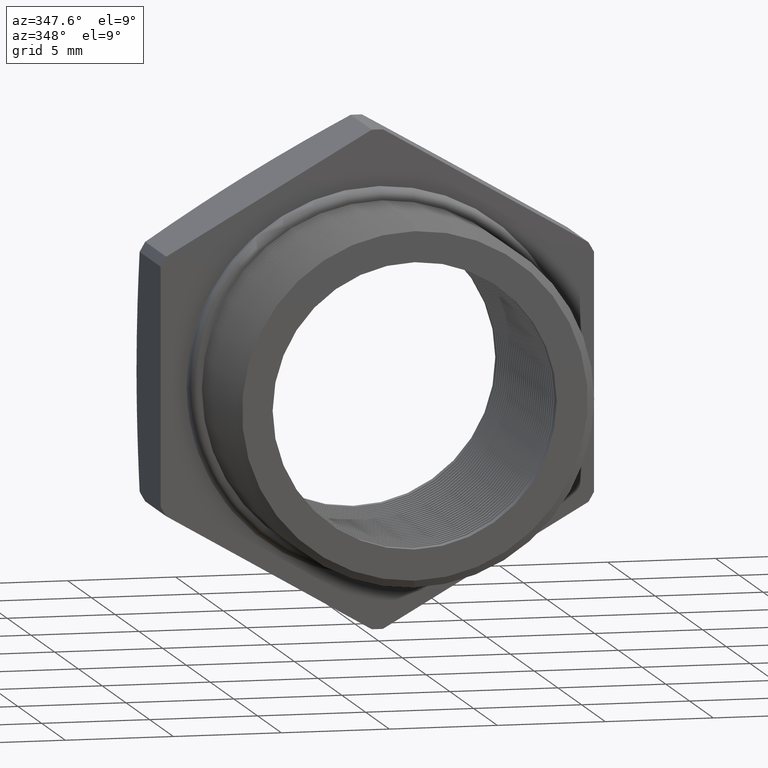
[diagram: clean part render]
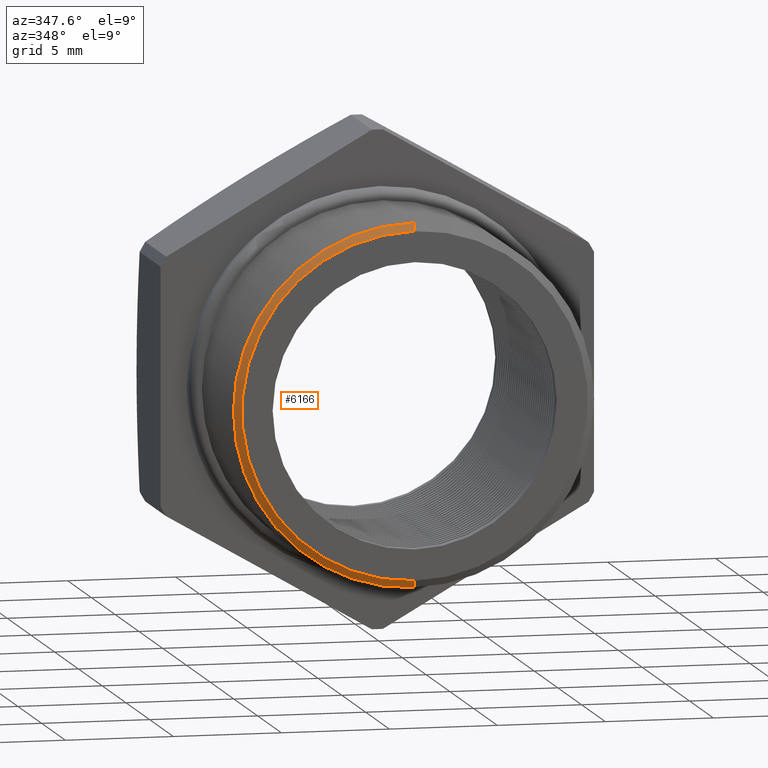
[diagram: same view with one face highlighted and labeled with its STEP entity id]
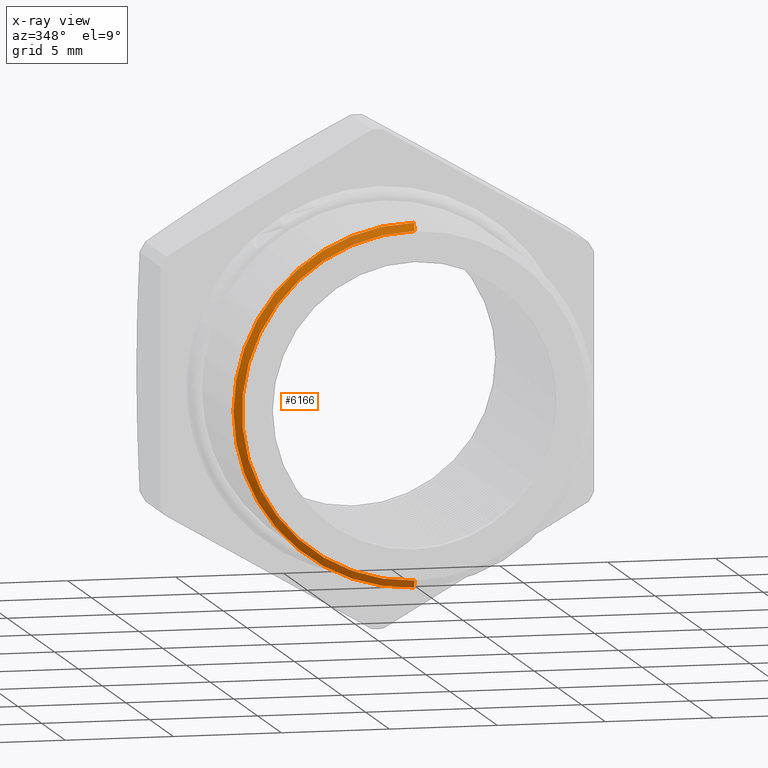
[diagram: x-ray of the same camera — body ghosted, the highlighted face saturated]
A machine part, auxiliary view. The second image highlights one B-rep face of the part: STEP entity #6166.
The next image is the same camera in x-ray: the body ghosted, the highlighted face saturated — about 0% of this face is hidden behind the body in this view.
In plain terms, the highlighted conical surface has half-angle 60 deg.
Its self-contained STEP definition (entity closure, byte-faithful):
#793 = CARTESIAN_POINT ( 'NONE',  ( 4.026318816969966200E-017, -0.09484510941705207000, 0.3287738815610546400 ) ) ;
#794 = DIRECTION ( 'NONE',  ( 0.0000000000000000000, 0.5000000000000008900, 0.8660254037844380400 ) ) ;
#795 = VECTOR ( 'NONE', #794, 39.37007874015748100 ) ;
#796 = CARTESIAN_POINT ( 'NONE',  ( 0.0000000000000000000, -0.09484510941705207000, 0.3287738815610546400 ) ) ;
#797 = LINE ( 'NONE', #796, #795 ) ;
#2905 = CIRCLE ( 'NONE', #2960, 0.3287738815610546400 ) ;
#2945 = DIRECTION ( 'NONE',  ( 0.0000000000000000000, 0.0000000000000000000, 1.000000000000000000 ) ) ;
#2946 = DIRECTION ( 'NONE',  ( -0.0000000000000000000, 1.000000000000000000, -0.0000000000000000000 ) ) ;
#2947 = CARTESIAN_POINT ( 'NONE',  ( 0.0000000000000000000, -0.09484510941705207000, 0.0000000000000000000 ) ) ;
#2948 = AXIS2_PLACEMENT_3D ( 'NONE', #2947, #2946, #2945 ) ;
#2949 = CONICAL_SURFACE ( 'NONE', #2948, 0.3287738815610546400, 1.047197551196596700 ) ;
#2954 = FACE_OUTER_BOUND ( 'NONE', #6167, .T. ) ;
#2957 = DIRECTION ( 'NONE',  ( 0.0000000000000000000, 0.0000000000000000000, 1.000000000000000000 ) ) ;
#2958 = DIRECTION ( 'NONE',  ( -0.0000000000000000000, 1.000000000000000000, -0.0000000000000000000 ) ) ;
#2959 = CARTESIAN_POINT ( 'NONE',  ( 0.0000000000000000000, -0.09484510941705207000, 0.0000000000000000000 ) ) ;
#2960 = AXIS2_PLACEMENT_3D ( 'NONE', #2959, #2958, #2957 ) ;
#4373 = VERTEX_POINT ( 'NONE', #7662 ) ;
#4374 = EDGE_CURVE ( 'NONE', #4385, #4373, #7661, .T. ) ;
#4385 = VERTEX_POINT ( 'NONE', #7698 ) ;
#4394 = VERTEX_POINT ( 'NONE', #7743 ) ;
#4408 = EDGE_CURVE ( 'NONE', #4385, #4394, #7783, .T. ) ;
#4977 = EDGE_CURVE ( 'NONE', #4394, #4978, #797, .T. ) ;
#4978 = VERTEX_POINT ( 'NONE', #793 ) ;
#6159 = EDGE_CURVE ( 'NONE', #4373, #4978, #2905, .T. ) ;
#6166 = ADVANCED_FACE ( 'NONE', ( #2954 ), #2949, .T. ) ;
#6167 = EDGE_LOOP ( 'NONE', ( #6168, #6219, #6220, #6221 ) ) ;
#6168 = ORIENTED_EDGE ( 'NONE', *, *, #4374, .F. ) ;
#6219 = ORIENTED_EDGE ( 'NONE', *, *, #4408, .T. ) ;
#6220 = ORIENTED_EDGE ( 'NONE', *, *, #4977, .T. ) ;
#6221 = ORIENTED_EDGE ( 'NONE', *, *, #6159, .F. ) ;
#7658 = DIRECTION ( 'NONE',  ( 1.060575238724906300E-016, 0.5000000000000008900, -0.8660254037844380400 ) ) ;
#7659 = VECTOR ( 'NONE', #7658, 39.37007874015748100 ) ;
#7660 = CARTESIAN_POINT ( 'NONE',  ( 4.026318816969965600E-017, -0.09484510941705207000, -0.3287738815610546400 ) ) ;
#7661 = LINE ( 'NONE', #7660, #7659 ) ;
#7662 = CARTESIAN_POINT ( 'NONE',  ( 0.0000000000000000000, -0.09484510941705207000, -0.3287738815610546400 ) ) ;
#7698 = CARTESIAN_POINT ( 'NONE',  ( 3.857637417314162700E-017, -0.1027974636441130200, -0.3150000000000000000 ) ) ;
#7743 = CARTESIAN_POINT ( 'NONE',  ( 0.0000000000000000000, -0.1027974636441130200, 0.3150000000000000000 ) ) ;
#7779 = DIRECTION ( 'NONE',  ( 0.0000000000000000000, 0.0000000000000000000, 1.000000000000000000 ) ) ;
#7780 = DIRECTION ( 'NONE',  ( -0.0000000000000000000, 1.000000000000000000, -0.0000000000000000000 ) ) ;
#7781 = CARTESIAN_POINT ( 'NONE',  ( 0.0000000000000000000, -0.1027974636441130200, 0.0000000000000000000 ) ) ;
#7782 = AXIS2_PLACEMENT_3D ( 'NONE', #7781, #7780, #7779 ) ;
#7783 = CIRCLE ( 'NONE', #7782, 0.3150000000000000000 ) ;